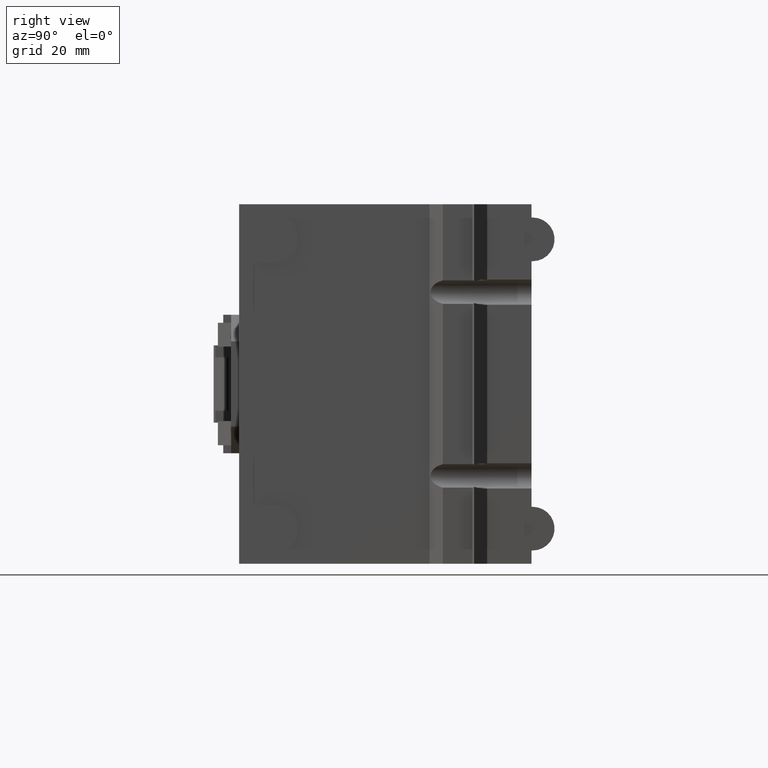
[diagram: clean part render]
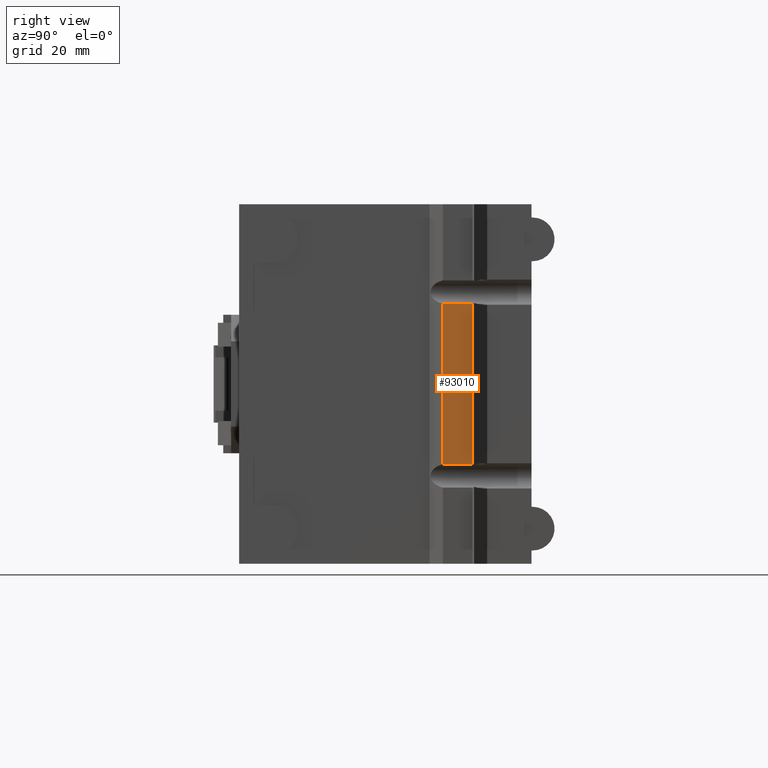
[diagram: same view with one face highlighted and labeled with its STEP entity id]
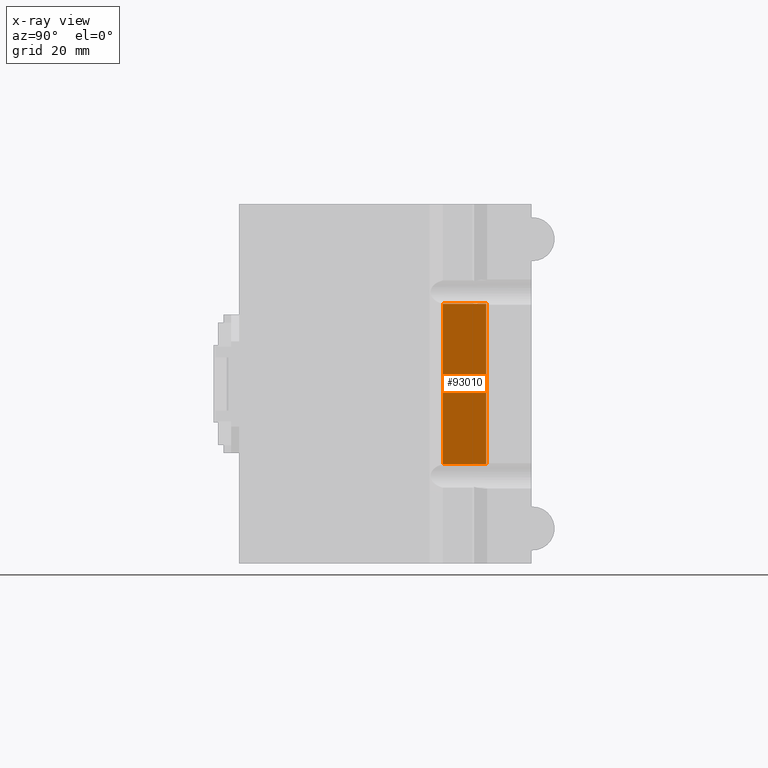
[diagram: x-ray of the same camera — body ghosted, the highlighted face saturated]
A machine part, right view. The second image highlights one B-rep face of the part: STEP entity #93010.
The next image is the same camera in x-ray: the body ghosted, the highlighted face saturated — about 0% of this face is hidden behind the body in this view.
In plain terms, the highlighted planar face has unit normal (1, 0, 0).
Its self-contained STEP definition (entity closure, byte-faithful):
#24510=CARTESIAN_POINT('',(30.5,85.360428322959,-157.2565865962));
#24520=DIRECTION('',(0.,0.,-1.));
#24530=DIRECTION('',(-1.,0.,0.));
#24540=AXIS2_PLACEMENT_3D('',#24510,#24520,#24530);
#24550=PLANE('',#24540);
#38470=CARTESIAN_POINT('',(0.,75.4609170961234,-157.2565865962));
#38480=DIRECTION('',(-1.,0.,0.));
#38490=VECTOR('',#38480,1.);
#38500=LINE('',#38470,#38490);
#38640=CARTESIAN_POINT('',(55.0815149990692,75.4609170961234,
-157.2565865962));
#38650=VERTEX_POINT('',#38640);
#38680=CARTESIAN_POINT('',(-5.08151499906917,75.4609170961233,
-157.2565865962));
#38690=VERTEX_POINT('',#38680);
#38700=EDGE_CURVE('',#38650,#38690,#38500,.T.);
#40370=CARTESIAN_POINT('',(50.,91.75,-157.2565865962));
#40380=DIRECTION('',(-1.,0.,0.));
#40390=VECTOR('',#40380,1.);
#40400=LINE('',#40370,#40390);
#92800=CARTESIAN_POINT('',(55.0815149990692,91.75,-157.2565865962));
#92810=VERTEX_POINT('',#92800);
#92820=CARTESIAN_POINT('',(-5.08151499906919,91.75,-157.2565865962));
#92830=VERTEX_POINT('',#92820);
#92840=EDGE_CURVE('',#92810,#92830,#40400,.T.);
#92850=ORIENTED_EDGE('',*,*,#92840,.F.);
#92860=CARTESIAN_POINT('',(-5.08151499906917,-23.43060520995,
-157.2565865962));
#92870=DIRECTION('',(0.,1.,0.));
#92880=VECTOR('',#92870,1.);
#92890=LINE('',#92860,#92880);
#92900=EDGE_CURVE('',#38690,#92830,#92890,.T.);
#92910=ORIENTED_EDGE('',*,*,#92900,.T.);
#92920=ORIENTED_EDGE('',*,*,#38700,.T.);
#92930=CARTESIAN_POINT('',(55.0815149990692,-23.43060520995,
-157.2565865962));
#92940=DIRECTION('',(0.,1.,0.));
#92950=VECTOR('',#92940,1.);
#92960=LINE('',#92930,#92950);
#92970=EDGE_CURVE('',#38650,#92810,#92960,.T.);
#92980=ORIENTED_EDGE('',*,*,#92970,.F.);
#92990=EDGE_LOOP('',(#92980,#92920,#92910,#92850));
#93000=FACE_OUTER_BOUND('',#92990,.T.);
#93010=ADVANCED_FACE('',(#93000),#24550,.T.);